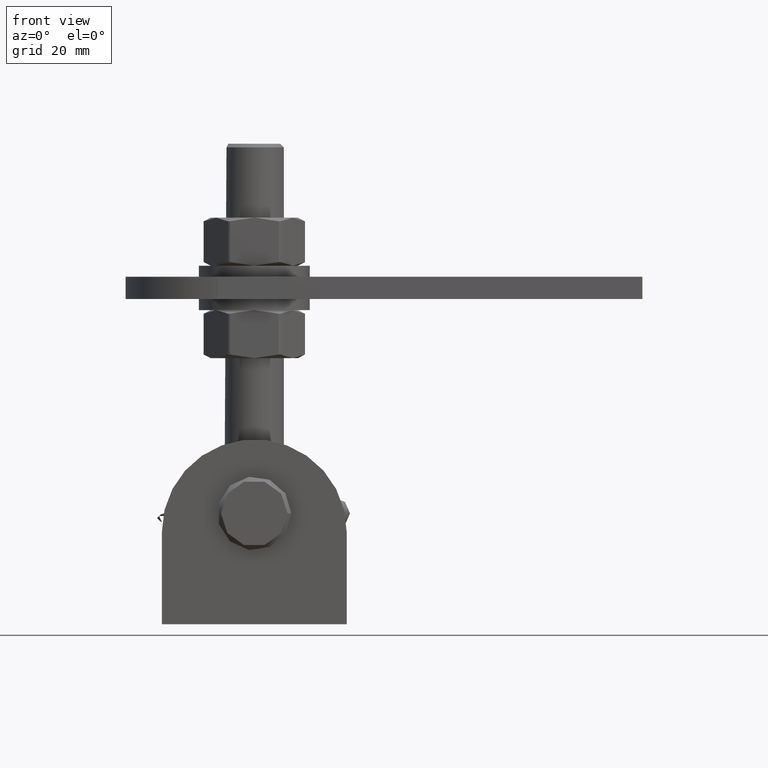
[diagram: clean part render]
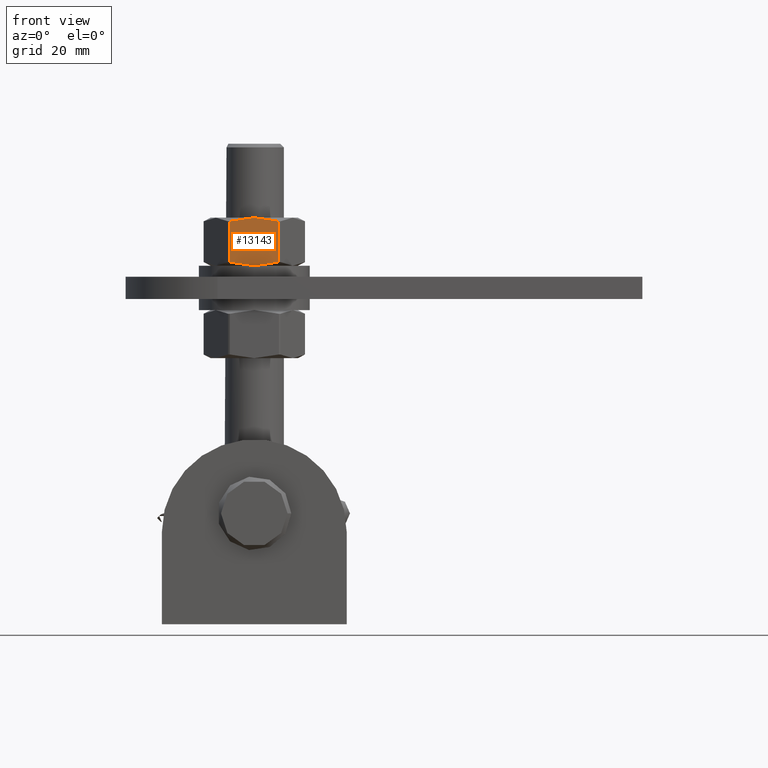
[diagram: same view with one face highlighted and labeled with its STEP entity id]
A machine part, front view. The second image highlights one B-rep face of the part: STEP entity #13143.
In plain terms, the highlighted planar face has unit normal (0, 1, 0).
Its self-contained STEP definition (entity closure, byte-faithful):
#957 = CARTESIAN_POINT ( 'NONE',  ( 0.5605972413833090195, 6.500000000000015099, 11.99999999999998757 ) ) ;
#1427 = CARTESIAN_POINT ( 'NONE',  ( -5.557285300470978129, 5.812721408234618359, 11.99999999999998757 ) ) ;
#1431 = CARTESIAN_POINT ( 'NONE',  ( 1.122912357192197064, -6.477208455690142586, 11.99999999999998934 ) ) ;
#2042 = VERTEX_POINT ( 'NONE', #18090 ) ;
#2943 = EDGE_CURVE ( 'NONE', #10800, #2042, #19663, .T. ) ;
#3426 = EDGE_CURVE ( 'NONE', #28622, #4482, #17823, .T. ) ;
#3762 = CARTESIAN_POINT ( 'NONE',  ( -1.232595164407830946E-29, 6.500000000000005329, 11.99999999999998757 ) ) ;
#4482 = VERTEX_POINT ( 'NONE', #19476 ) ;
#4596 = CARTESIAN_POINT ( 'NONE',  ( -6.928203230275506996, 6.500000000000005329, 11.99999999999998579 ) ) ;
#4997 = CARTESIAN_POINT ( 'NONE',  ( 1.122912357192200838, 6.477208455690143474, 11.99999999999998934 ) ) ;
#5524 = VECTOR ( 'NONE', #13362, 1000.000000000000000 ) ;
#6860 = ORIENTED_EDGE ( 'NONE', *, *, #28338, .T. ) ;
#7280 = CARTESIAN_POINT ( 'NONE',  ( -5.557285300470987899, -5.812721408234619247, 11.99999999999998934 ) ) ;
#8356 = CARTESIAN_POINT ( 'NONE',  ( 4.476170215682664377, 6.059454543503314028, 11.99999999999998579 ) ) ;
#9703 = CARTESIAN_POINT ( 'NONE',  ( -4.450555589882171148, -6.064590613802884889, 11.99999999999998934 ) ) ;
#10344 = CARTESIAN_POINT ( 'NONE',  ( -2.234743191283682151, 6.407875498875738707, 11.99999999999998934 ) ) ;
#10375 = ORIENTED_EDGE ( 'NONE', *, *, #21999, .T. ) ;
#10442 = CARTESIAN_POINT ( 'NONE',  ( -6.639528095681161091, 5.510220883462258357, 11.99999999999998579 ) ) ;
#10645 = CARTESIAN_POINT ( 'NONE',  ( 4.476170215682652831, -6.059454543503318469, 11.99999999999998934 ) ) ;
#10800 = VERTEX_POINT ( 'NONE', #13071 ) ;
#11542 = VERTEX_POINT ( 'NONE', #24857 ) ;
#11786 = VECTOR ( 'NONE', #14071, 1000.000000000000000 ) ;
#12544 = CARTESIAN_POINT ( 'NONE',  ( 5.564852187614559575, 5.810606367744603595, 11.99999999999998757 ) ) ;
#12612 = CARTESIAN_POINT ( 'NONE',  ( -1.232595164407830946E-29, 6.500000000000005329, 11.99999999999998757 ) ) ;
#12687 = CARTESIAN_POINT ( 'NONE',  ( 0.5605972413833056889, -6.500000000000013323, 11.99999999999998579 ) ) ;
#12966 = CARTESIAN_POINT ( 'NONE',  ( 2.250940326994608220, -6.386546577122194535, 11.99999999999998757 ) ) ;
#13071 = CARTESIAN_POINT ( 'NONE',  ( -6.639528095681162867, -5.510220883462258357, 11.99999999999998579 ) ) ;
#13143 = ADVANCED_FACE ( 'NONE', ( #28437 ), #15840, .F. ) ;
#13362 = DIRECTION ( 'NONE',  ( 0.000000000000000000, -1.000000000000000000, -1.372308401475337047E-42 ) ) ;
#13599 = DIRECTION ( 'NONE',  ( -8.408687616966070308E-40, -1.372308401475256755E-42, -1.000000000000000000 ) ) ;
#13871 = LINE ( 'NONE', #23247, #11786 ) ;
#14071 = DIRECTION ( 'NONE',  ( -0.000000000000000000, 1.000000000000000000, 1.372308401475337047E-42 ) ) ;
#14618 = CARTESIAN_POINT ( 'NONE',  ( -1.120843460520752233, 6.500000000000014211, 11.99999999999998579 ) ) ;
#14973 = CARTESIAN_POINT ( 'NONE',  ( 6.639528095680697461, 5.510220883462368491, 11.99999999999998579 ) ) ;
#15684 = LINE ( 'NONE', #22248, #5524 ) ;
#15840 = PLANE ( 'NONE',  #19519 ) ;
#16159 = EDGE_LOOP ( 'NONE', ( #6860, #16886, #18863, #10375, #25726, #19535 ) ) ;
#16886 = ORIENTED_EDGE ( 'NONE', *, *, #20002, .T. ) ;
#17081 = CARTESIAN_POINT ( 'NONE',  ( 2.812232842606248617, -6.318972809719034522, 11.99999999999998579 ) ) ;
#17823 = B_SPLINE_CURVE_WITH_KNOTS ( 'NONE', 3,
 ( #14973, #12544, #8356, #23951, #19946, #4997, #957, #12612 ),
 .UNSPECIFIED., .F., .F.,
 ( 4, 2, 2, 4 ),
 ( 0.005378634189493567731, 0.008726149205378659277, 0.01039990671332120462, 0.01207366422126374995 ),
 .UNSPECIFIED. ) ;
#18090 = CARTESIAN_POINT ( 'NONE',  ( -6.162975822039154730E-30, -6.500000000000005329, 11.99999999999998757 ) ) ;
#18500 = CARTESIAN_POINT ( 'NONE',  ( 6.639528095680697461, 5.510220883462368491, 11.99999999999998579 ) ) ;
#18562 = CARTESIAN_POINT ( 'NONE',  ( -6.162975822039154730E-30, -6.500000000000005329, 11.99999999999998757 ) ) ;
#18863 = ORIENTED_EDGE ( 'NONE', *, *, #3426, .T. ) ;
#18885 = EDGE_CURVE ( 'NONE', #11542, #10800, #15684, .T. ) ;
#19476 = CARTESIAN_POINT ( 'NONE',  ( -1.232595164407830946E-29, 6.500000000000005329, 11.99999999999998757 ) ) ;
#19519 = AXIS2_PLACEMENT_3D ( 'NONE', #4596, #13599, #20139 ) ;
#19535 = ORIENTED_EDGE ( 'NONE', *, *, #2943, .T. ) ;
#19663 = B_SPLINE_CURVE_WITH_KNOTS ( 'NONE', 3,
 ( #25220, #7280, #9703, #27461, #22853, #18562 ),
 .UNSPECIFIED., .F., .F.,
 ( 4, 2, 4 ),
 ( 0.01265961203048445935, 0.01601465630321313380, 0.01936970057594181172 ),
 .UNSPECIFIED. ) ;
#19946 = CARTESIAN_POINT ( 'NONE',  ( 2.250940326994615326, 6.386546577122198087, 11.99999999999998757 ) ) ;
#20002 = EDGE_CURVE ( 'NONE', #21108, #28622, #13871, .T. ) ;
#20139 = DIRECTION ( 'NONE',  ( -1.000000000000000000, 0.000000000000000000, 8.408687616966070308E-40 ) ) ;
#21006 = B_SPLINE_CURVE_WITH_KNOTS ( 'NONE', 3,
 ( #28186, #12687, #1431, #12966, #17081, #10645, #21853, #28277 ),
 .UNSPECIFIED., .F., .F.,
 ( 4, 2, 2, 4 ),
 ( 0.01936970057594181172, 0.02104774807343687271, 0.02272579557093193370, 0.02608189056592205221 ),
 .UNSPECIFIED. ) ;
#21108 = VERTEX_POINT ( 'NONE', #24156 ) ;
#21853 = CARTESIAN_POINT ( 'NONE',  ( 5.564852187614544476, -5.810606367744608036, 11.99999999999998757 ) ) ;
#21999 = EDGE_CURVE ( 'NONE', #4482, #11542, #28579, .T. ) ;
#22248 = CARTESIAN_POINT ( 'NONE',  ( -6.639528095680694797, 6.500000000000005329, 11.99999999999998579 ) ) ;
#22853 = CARTESIAN_POINT ( 'NONE',  ( -1.120843460520752455, -6.500000000000014211, 11.99999999999998579 ) ) ;
#23247 = CARTESIAN_POINT ( 'NONE',  ( 6.639528095680699238, 6.500000000000005329, 11.99999999999998579 ) ) ;
#23617 = CARTESIAN_POINT ( 'NONE',  ( -4.450555589882180030, 6.064590613802882224, 11.99999999999998757 ) ) ;
#23951 = CARTESIAN_POINT ( 'NONE',  ( 2.812232842606254390, 6.318972809719033634, 11.99999999999998934 ) ) ;
#24156 = CARTESIAN_POINT ( 'NONE',  ( 6.639528095680695685, -5.510220883462424446, 11.99999999999998579 ) ) ;
#24857 = CARTESIAN_POINT ( 'NONE',  ( -6.639528095681161091, 5.510220883462258357, 11.99999999999998579 ) ) ;
#25220 = CARTESIAN_POINT ( 'NONE',  ( -6.639528095681162867, -5.510220883462258357, 11.99999999999998579 ) ) ;
#25726 = ORIENTED_EDGE ( 'NONE', *, *, #18885, .T. ) ;
#27461 = CARTESIAN_POINT ( 'NONE',  ( -2.234743191283678598, -6.407875498875736930, 11.99999999999998046 ) ) ;
#28186 = CARTESIAN_POINT ( 'NONE',  ( -6.162975822039154730E-30, -6.500000000000005329, 11.99999999999998757 ) ) ;
#28277 = CARTESIAN_POINT ( 'NONE',  ( 6.639528095680695685, -5.510220883462424446, 11.99999999999998579 ) ) ;
#28338 = EDGE_CURVE ( 'NONE', #2042, #21108, #21006, .T. ) ;
#28437 = FACE_OUTER_BOUND ( 'NONE', #16159, .T. ) ;
#28579 = B_SPLINE_CURVE_WITH_KNOTS ( 'NONE', 3,
 ( #3762, #14618, #10344, #23617, #1427, #10442 ),
 .UNSPECIFIED., .F., .F.,
 ( 4, 2, 4 ),
 ( 0.01207366422126374995, 0.01542013120109712518, 0.01876659818093050214 ),
 .UNSPECIFIED. ) ;
#28622 = VERTEX_POINT ( 'NONE', #18500 ) ;